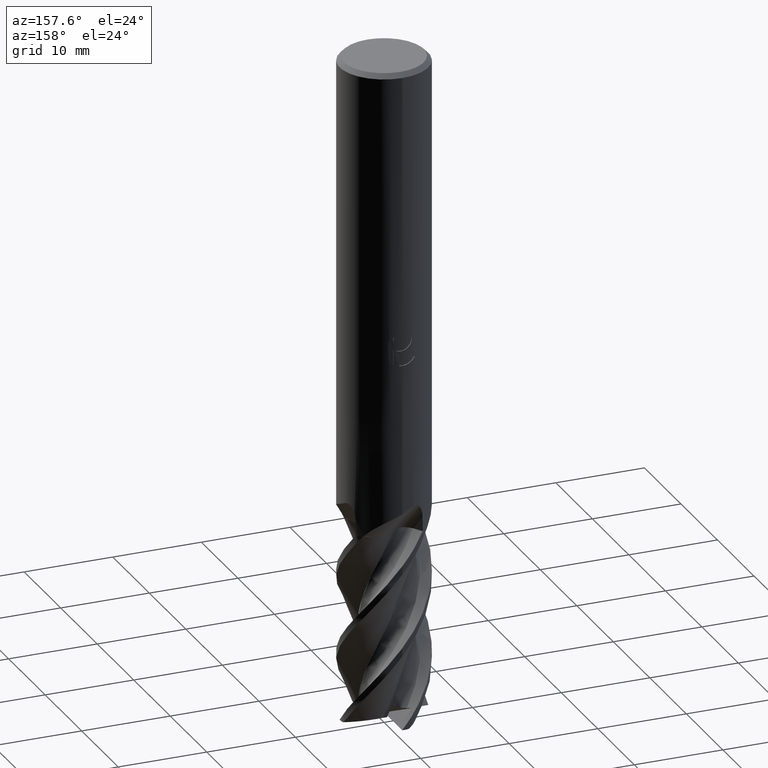
[diagram: clean part render]
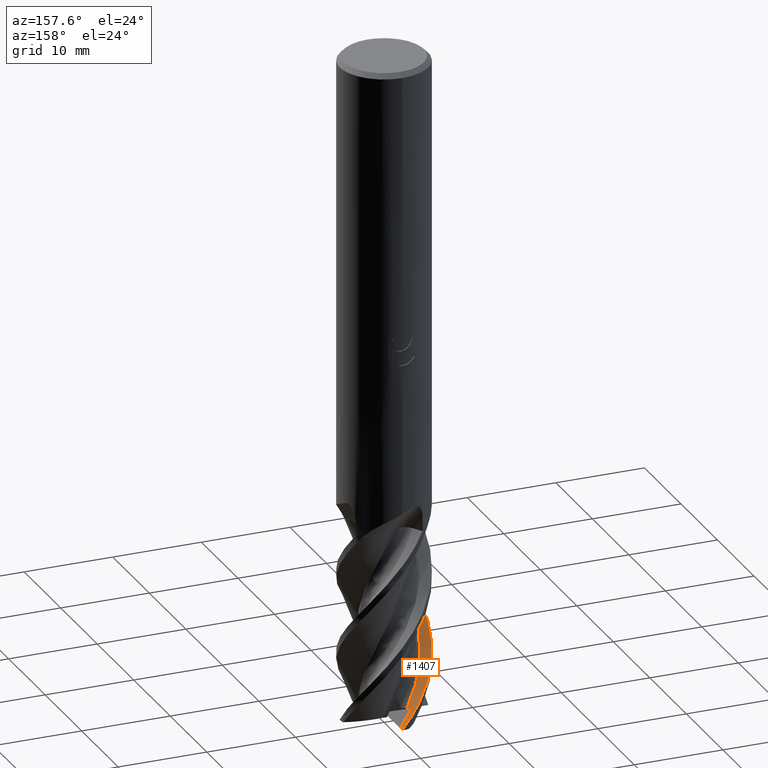
[diagram: same view with one face highlighted and labeled with its STEP entity id]
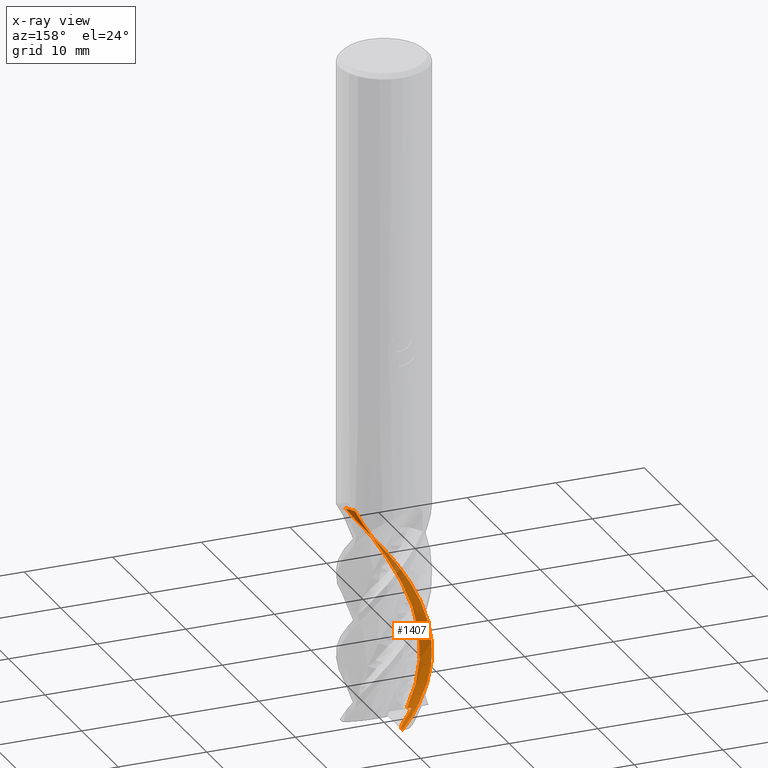
[diagram: x-ray of the same camera — body ghosted, the highlighted face saturated]
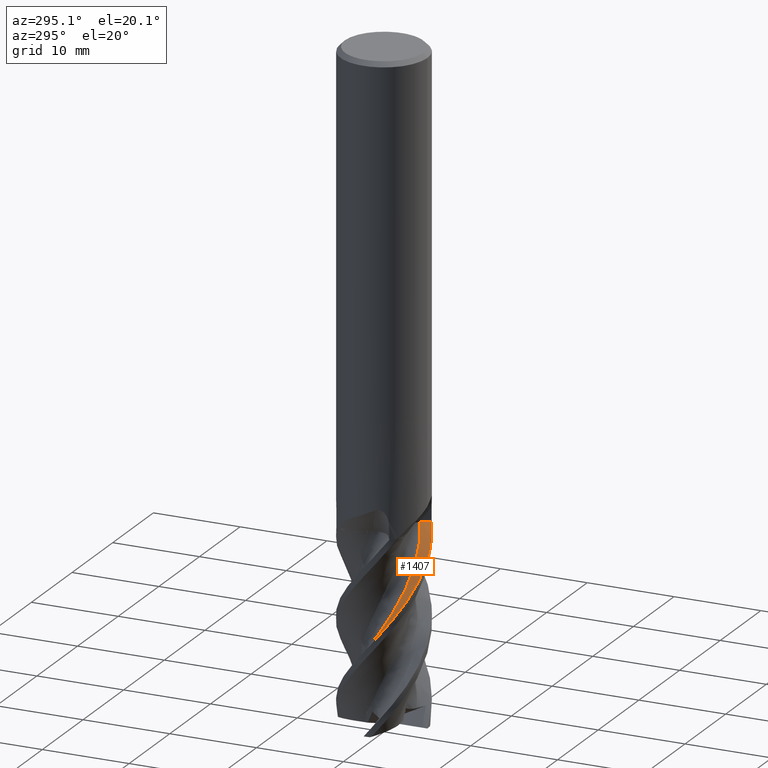
[diagram: same view with one face highlighted and labeled with its STEP entity id]
A machine part, auxiliary view. The second image highlights one B-rep face of the part: STEP entity #1407.
The next image is the same camera in x-ray: the body ghosted, the highlighted face saturated — about 12% of this face is hidden behind the body in this view.
A second angle (auxiliary view) of the same face is appended — the face is thin or edge-on in the first view.
In plain terms, the highlighted face is a freeform B-spline surface patch.
Its self-contained STEP definition (entity closure, byte-faithful):
#661=EDGE_CURVE('',#1363,#1141,#1661,.T.);
#667=EDGE_CURVE('',#1057,#911,#1667,.T.);
#701=EDGE_CURVE('',#911,#743,#1702,.T.);
#743=VERTEX_POINT('',#1747);
#911=VERTEX_POINT('',#1935);
#957=EDGE_CURVE('',#1141,#1057,#1983,.T.);
#1057=VERTEX_POINT('',#2091);
#1137=EDGE_CURVE('',#1197,#1353,#2179,.T.);
#1141=VERTEX_POINT('',#2183);
#1189=EDGE_CURVE('',#743,#1197,#2235,.T.);
#1197=VERTEX_POINT('',#2243);
#1285=EDGE_CURVE('',#1353,#1363,#2342,.T.);
#1353=VERTEX_POINT('',#2414);
#1363=VERTEX_POINT('',#2424);
#1407=ADVANCED_FACE('',(#2475),#2476,.T.);
#1661=B_SPLINE_CURVE_WITH_KNOTS('',3,(#3232,#3233,#3234,#3235,#3236,#3237,#3238,#3239,#3240,#3241,#3242,#3243,#3244,#3245,#3246,#3247,#3248,#3249,#3250,#3251,#3252,#3253,#3254,#3255,#3256,#3257,#3258,#3259,#3260,#3261,#3262,#3263,#3264,#3265,#3266,#3267,#3268,#3269,#3270,#3271,#3272,#3273),.UNSPECIFIED.,.F.,.F.,(4,2,2,2,2,2,2,2,2,2,2,2,2,2,2,2,2,2,2,2,4),(0.0,1.53652760794536,3.87250549074698,5.42159888540906,6.57529160098729,7.14777893956798,8.50902990223595,10.1655612727631,11.2944665209618,13.5017229439142,14.6148289873105,16.8178197053259,17.9196246500533,20.1106283841333,21.1957014363844,21.9712993966682,23.3290429210181,24.3653283489261,25.8635021609493,26.616826521443,27.3681466649819),.UNSPECIFIED.);
#1667=B_SPLINE_CURVE_WITH_KNOTS('',3,(#3282,#3283,#3284,#3285,#3286,#3287,#3288,#3289,#3290,#3291,#3292,#3293,#3294,#3295,#3296,#3297,#3298,#3299,#3300,#3301,#3302,#3303,#3304,#3305,#3306,#3307,#3308,#3309,#3310,#3311,#3312,#3313,#3314,#3315,#3316,#3317,#3318,#3319,#3320,#3321,#3322,#3323),.UNSPECIFIED.,.F.,.F.,(4,2,2,2,2,2,2,2,2,2,2,2,2,2,2,2,2,2,2,2,4),(0.0,1.53652760794536,3.87250549074698,5.42159888540906,6.57529160098729,7.14777893956798,8.50902990223595,10.1655612727631,11.2944665209618,13.5017229439142,14.6148289873105,16.8178197053259,17.9196246500533,20.1106283841333,21.1957014363844,21.9712993966682,23.3290429210181,24.3653283489261,25.8635021609493,26.616826521443,27.3681466649819),.UNSPECIFIED.);
#1702=B_SPLINE_CURVE_WITH_KNOTS('',3,(#3810,#3811,#3812,#3813,#3814,#3815,#3816,#3817,#3818,#3819,#3820,#3821,#3822,#3823,#3824,#3825,#3826,#3827,#3828,#3829,#3830,#3831,#3832,#3833,#3834,#3835,#3836,#3837),.UNSPECIFIED.,.F.,.F.,(4,2,2,2,2,2,2,2,2,2,2,2,2,4),(0.0,0.81890996863176,1.13930411827766,1.55244599896037,2.41847454357403,3.02823267671437,3.46285459909476,3.91399485452836,4.59992374035384,5.5716188959974,9.55246612589732,16.2999457968263,16.7000758043681,21.8881891010122),.UNSPECIFIED.);
#1747=CARTESIAN_POINT('',(-1.41002267526632,4.17503026798834,-73.0449553888539));
#1935=CARTESIAN_POINT('',(0.00029284233740714,4.99999993474591,-74.9875307460198));
#1983=B_SPLINE_CURVE_WITH_KNOTS('',3,(#5569,#5570,#5571,#5572,#5573,#5574,#5575,#5576,#5577,#5578,#5579,#5580,#5581,#5582,#5583,#5584,#5585,#5586,#5587,#5588,#5589,#5590,#5591,#5592,#5593,#5594,#5595,#5596,#5597,#5598,#5599,#5600,#5601,#5602,#5603,#5604,#5605,#5606,#5607,#5608,#5609,#5610),.UNSPECIFIED.,.F.,.F.,(4,2,2,2,2,2,2,2,2,2,2,2,2,2,2,2,2,2,2,2,4),(0.0,1.53652760794536,3.87250549074698,5.42159888540906,6.57529160098729,7.14777893956798,8.50902990223595,10.1655612727631,11.2944665209618,13.5017229439142,14.6148289873105,16.8178197053259,17.9196246500533,20.1106283841333,21.1957014363844,21.9712993966682,23.3290429210181,24.3653283489261,25.8635021609493,26.616826521443,27.3681466649819),.UNSPECIFIED.);
#2091=CARTESIAN_POINT('',(1.33110480624376E-014,4.99999994173844,-74.9871824572319));
#2179=B_SPLINE_CURVE_WITH_KNOTS('',3,(#7111,#7112,#7113,#7114,#7115,#7116,#7117,#7118,#7119,#7120,#7121,#7122,#7123,#7124,#7125,#7126,#7127,#7128,#7129,#7130,#7131,#7132,#7133,#7134,#7135,#7136,#7137,#7138,#7139,#7140,#7141,#7142,#7143,#7144,#7145,#7146,#7147,#7148,#7149,#7150,#7151,#7152,#7153,#7154,#7155,#7156,#7157,#7158,#7159,#7160,#7161,#7162,#7163),.UNSPECIFIED.,.F.,.F.,(4,1,2,1,2,1,2,1,2,1,2,1,2,1,2,1,2,1,2,1,2,1,2,1,2,1,2,1,2,1,2,1,2,1,4),(0.0,0.658549239123413,1.31709847824683,1.97564771737024,2.63419695649365,3.95129543474048,5.2683939129873,6.58549239123413,7.90259086948096,9.21968934772778,10.5367878259746,11.8538863042214,13.1709847824683,14.4880832607151,15.8051817389619,17.1222802172087,18.4393786954556,19.7564771737024,21.0735756519492,22.390674130196,23.7077726084429,25.0248710866897,26.3419695649365,27.6590680431833,28.9761665214302,30.293264999677,31.6103634779238,32.9274619561707,34.2445604344175,35.5616589126643,36.8787573909111,38.195855869158,39.5129543474048,40.8300528256516,42.1471513038984),.UNSPECIFIED.);
#2183=CARTESIAN_POINT('',(7.65345481890325E-010,-4.99991486074942,-56.269364871849));
#2235=B_SPLINE_CURVE_WITH_KNOTS('',3,(#7308,#7309,#7310,#7311,#7312,#7313),.UNSPECIFIED.,.F.,.F.,(4,2,4),(0.0,0.752535492506018,1.51115268146122),.UNSPECIFIED.);
#2243=CARTESIAN_POINT('',(-1.09334985087204,3.60114669389617,-73.2244277868559));
#2342=B_SPLINE_CURVE_WITH_KNOTS('',3,(#7700,#7701,#7702,#7703,#7704,#7705),.UNSPECIFIED.,.F.,.F.,(4,2,4),(0.0,0.718749972684842,1.43749994537414),.UNSPECIFIED.);
#2414=CARTESIAN_POINT('',(1.96059927409612,-3.21236791552506,-53.0));
#2424=CARTESIAN_POINT('',(2.61261439095677,-4.2630090375421,-53.0));
#2475=FACE_OUTER_BOUND('',#8945,.T.);
#2476=B_SPLINE_SURFACE_WITH_KNOTS('',3,3,((#8946,#8947,#8948,#8949,#8950,#8951,#8952,#8953,#8954,#8955,#8956,#8957,#8958,#8959,#8960,#8961,#8962,#8963,#8964,#8965,#8966,#8967,#8968,#8969,#8970,#8971,#8972,#8973,#8974,#8975,#8976,#8977,#8978,#8979,#8980,#8981,#8982,#8983,#8984,#8985,#8986,#8987,#8988,#8989,#8990,#8991,#8992,#8993,#8994,#8995,#8996,#8997,#8998),(#8999,#9000,#9001,#9002,#9003,#9004,#9005,#9006,#9007,#9008,#9009,#9010,#9011,#9012,#9013,#9014,#9015,#9016,#9017,#9018,#9019,#9020,#9021,#9022,#9023,#9024,#9025,#9026,#9027,#9028,#9029,#9030,#9031,#9032,#9033,#9034,#9035,#9036,#9037,#9038,#9039,#9040,#9041,#9042,#9043,#9044,#9045,#9046,#9047,#9048,#9049,#9050,#9051),(#9052,#9053,#9054,#9055,#9056,#9057,#9058,#9059,#9060,#9061,#9062,#9063,#9064,#9065,#9066,#9067,#9068,#9069,#9070,#9071,#9072,#9073,#9074,#9075,#9076,#9077,#9078,#9079,#9080,#9081,#9082,#9083,#9084,#9085,#9086,#9087,#9088,#9089,#9090,#9091,#9092,#9093,#9094,#9095,#9096,#9097,#9098,#9099,#9100,#9101,#9102,#9103,#9104),(#9105,#9106,#9107,#9108,#9109,#9110,#9111,#9112,#9113,#9114,#9115,#9116,#9117,#9118,#9119,#9120,#9121,#9122,#9123,#9124,#9125,#9126,#9127,#9128,#9129,#9130,#9131,#9132,#9133,#9134,#9135,#9136,#9137,#9138,#9139,#9140,#9141,#9142,#9143,#9144,#9145,#9146,#9147,#9148,#9149,#9150,#9151,#9152,#9153,#9154,#9155,#9156,#9157)),.UNSPECIFIED.,.F.,.F.,.F.,(4,4),(4,1,2,1,2,1,2,1,2,1,2,1,2,1,2,1,2,1,2,1,2,1,2,1,2,1,2,1,2,1,2,1,2,1,4),(0.0,1.4375),(0.0,0.658549239123413,1.31709847824683,1.97564771737024,2.63419695649365,3.95129543474048,5.2683939129873,6.58549239123413,7.90259086948096,9.21968934772778,10.5367878259746,11.8538863042214,13.1709847824683,14.4880832607151,15.8051817389619,17.1222802172087,18.4393786954556,19.7564771737024,21.0735756519492,22.390674130196,23.7077726084429,25.0248710866897,26.3419695649365,27.6590680431833,28.9761665214302,30.293264999677,31.6103634779238,32.9274619561707,34.2445604344175,35.5616589126643,36.8787573909111,38.195855869158,39.5129543474048,40.8300528256516,42.1471513038984),.UNSPECIFIED.);
#3232=CARTESIAN_POINT('',(2.61261439095677,-4.26300903754209,-53.0));
#3233=CARTESIAN_POINT('',(2.33168022880732,-4.43518356029351,-53.3921173948723));
#3234=CARTESIAN_POINT('',(2.03673548232764,-4.57814605552175,-53.7713202783011));
#3235=CARTESIAN_POINT('',(1.25704743735983,-4.86519257932207,-54.763881771331));
#3236=CARTESIAN_POINT('',(0.761107997679203,-4.96746317165334,-55.3731573320372));
#3237=CARTESIAN_POINT('',(-0.079064174761849,-5.01053118338478,-56.3637506473828));
#3238=CARTESIAN_POINT('',(-0.416516072528732,-4.99412891873343,-56.7611489300061));
#3239=CARTESIAN_POINT('',(-1.00306944843876,-4.90481342645093,-57.4740121028553));
#3240=CARTESIAN_POINT('',(-1.2506161446392,-4.84765467195389,-57.7795861466704));
#3241=CARTESIAN_POINT('',(-1.61349289822257,-4.73410818647994,-58.2338541864232));
#3242=CARTESIAN_POINT('',(-1.7328093887909,-4.69177502032966,-58.3842871308744));
#3243=CARTESIAN_POINT('',(-2.13140838939397,-4.53294598555673,-58.8905697308991));
#3244=CARTESIAN_POINT('',(-2.40122852307442,-4.39616987305223,-59.2443459519753));
#3245=CARTESIAN_POINT('',(-2.97350516805911,-4.03673112079447,-60.0545226221496));
#3246=CARTESIAN_POINT('',(-3.26563398856897,-3.80449507515539,-60.5034918817328));
#3247=CARTESIAN_POINT('',(-3.70995732714648,-3.36158337957804,-61.2486449363876));
#3248=CARTESIAN_POINT('',(-3.8747029263051,-3.17029720179318,-61.5413748515816));
#3249=CARTESIAN_POINT('',(-4.32060306161433,-2.5650010695875,-62.4353386164274));
#3250=CARTESIAN_POINT('',(-4.55444058546694,-2.12246155107382,-63.0382772831976));
#3251=CARTESIAN_POINT('',(-4.80213876847993,-1.41495926391821,-63.9271160797639));
#3252=CARTESIAN_POINT('',(-4.86669289105208,-1.17397441672789,-64.2165966255577));
#3253=CARTESIAN_POINT('',(-5.00570784405528,-0.43680557026315,-65.1096976761052));
#3254=CARTESIAN_POINT('',(-5.02449378371653,0.0648174665259144,-65.7143020133299));
#3255=CARTESIAN_POINT('',(-4.94019035025981,0.810378339797872,-66.6025656664188));
#3256=CARTESIAN_POINT('',(-4.89392733444926,1.05458849151022,-66.8913428531266));
#3257=CARTESIAN_POINT('',(-4.69925706040115,1.77931974599238,-67.7858757134359));
#3258=CARTESIAN_POINT('',(-4.49786932834333,2.24074293065297,-68.3921692829471));
#3259=CARTESIAN_POINT('',(-4.09767642345225,2.87586652925973,-69.2794364051379));
#3260=CARTESIAN_POINT('',(-3.95058104934403,3.07493759011856,-69.5676250937625));
#3261=CARTESIAN_POINT('',(-3.67051560766202,3.39986241291773,-70.079559711646));
#3262=CARTESIAN_POINT('',(-3.54686289144326,3.52862990734862,-70.2938391775754));
#3263=CARTESIAN_POINT('',(-3.18945390670018,3.86319536601544,-70.8826288824765));
#3264=CARTESIAN_POINT('',(-2.94129308894178,4.05560037428705,-71.258874518085));
#3265=CARTESIAN_POINT('',(-2.47194939685044,4.35283287807299,-71.9148742383612));
#3266=CARTESIAN_POINT('',(-2.26100944465999,4.46613654318639,-72.1937894465796));
#3267=CARTESIAN_POINT('',(-1.72016942056021,4.70781700908434,-72.900665823064));
#3268=CARTESIAN_POINT('',(-1.38667217305986,4.81655539388471,-73.323051260935));
#3269=CARTESIAN_POINT('',(-0.873049370661902,4.92631901576414,-73.951774151583));
#3270=CARTESIAN_POINT('',(-0.698505993641353,4.95414734187121,-74.1618357665089));
#3271=CARTESIAN_POINT('',(-0.345812525259719,4.9911673633412,-74.5790103207502));
#3272=CARTESIAN_POINT('',(-0.169019644695649,5.00037488609531,-74.7860924696578));
#3273=CARTESIAN_POINT('',(0.0107752814717108,4.99998838931744,-75.0));
#3282=CARTESIAN_POINT('',(2.61261439095677,-4.26300903754209,-53.0));
#3283=CARTESIAN_POINT('',(2.33168022880732,-4.43518356029351,-53.3921173948723));
#3284=CARTESIAN_POINT('',(2.03673548232764,-4.57814605552175,-53.7713202783011));
#3285=CARTESIAN_POINT('',(1.25704743735983,-4.86519257932207,-54.763881771331));
#3286=CARTESIAN_POINT('',(0.761107997679203,-4.96746317165334,-55.3731573320372));
#3287=CARTESIAN_POINT('',(-0.079064174761849,-5.01053118338478,-56.3637506473828));
#3288=CARTESIAN_POINT('',(-0.416516072528732,-4.99412891873343,-56.7611489300061));
#3289=CARTESIAN_POINT('',(-1.00306944843876,-4.90481342645093,-57.4740121028553));
#3290=CARTESIAN_POINT('',(-1.2506161446392,-4.84765467195389,-57.7795861466704));
#3291=CARTESIAN_POINT('',(-1.61349289822257,-4.73410818647994,-58.2338541864232));
#3292=CARTESIAN_POINT('',(-1.7328093887909,-4.69177502032966,-58.3842871308744));
#3293=CARTESIAN_POINT('',(-2.13140838939397,-4.53294598555673,-58.8905697308991));
#3294=CARTESIAN_POINT('',(-2.40122852307442,-4.39616987305223,-59.2443459519753));
#3295=CARTESIAN_POINT('',(-2.97350516805911,-4.03673112079447,-60.0545226221496));
#3296=CARTESIAN_POINT('',(-3.26563398856897,-3.80449507515539,-60.5034918817328));
#3297=CARTESIAN_POINT('',(-3.70995732714648,-3.36158337957804,-61.2486449363876));
#3298=CARTESIAN_POINT('',(-3.8747029263051,-3.17029720179318,-61.5413748515816));
#3299=CARTESIAN_POINT('',(-4.32060306161433,-2.5650010695875,-62.4353386164274));
#3300=CARTESIAN_POINT('',(-4.55444058546694,-2.12246155107382,-63.0382772831976));
#3301=CARTESIAN_POINT('',(-4.80213876847993,-1.41495926391821,-63.9271160797639));
#3302=CARTESIAN_POINT('',(-4.86669289105208,-1.17397441672789,-64.2165966255577));
#3303=CARTESIAN_POINT('',(-5.00570784405528,-0.43680557026315,-65.1096976761052));
#3304=CARTESIAN_POINT('',(-5.02449378371653,0.0648174665259144,-65.7143020133299));
#3305=CARTESIAN_POINT('',(-4.94019035025981,0.810378339797872,-66.6025656664188));
#3306=CARTESIAN_POINT('',(-4.89392733444926,1.05458849151022,-66.8913428531266));
#3307=CARTESIAN_POINT('',(-4.69925706040115,1.77931974599238,-67.7858757134359));
#3308=CARTESIAN_POINT('',(-4.49786932834333,2.24074293065297,-68.3921692829471));
#3309=CARTESIAN_POINT('',(-4.09767642345225,2.87586652925973,-69.2794364051379));
#3310=CARTESIAN_POINT('',(-3.95058104934403,3.07493759011856,-69.5676250937625));
#3311=CARTESIAN_POINT('',(-3.67051560766202,3.39986241291773,-70.079559711646));
#3312=CARTESIAN_POINT('',(-3.54686289144326,3.52862990734862,-70.2938391775754));
#3313=CARTESIAN_POINT('',(-3.18945390670018,3.86319536601544,-70.8826288824765));
#3314=CARTESIAN_POINT('',(-2.94129308894178,4.05560037428705,-71.258874518085));
#3315=CARTESIAN_POINT('',(-2.47194939685044,4.35283287807299,-71.9148742383612));
#3316=CARTESIAN_POINT('',(-2.26100944465999,4.46613654318639,-72.1937894465796));
#3317=CARTESIAN_POINT('',(-1.72016942056021,4.70781700908434,-72.900665823064));
#3318=CARTESIAN_POINT('',(-1.38667217305986,4.81655539388471,-73.323051260935));
#3319=CARTESIAN_POINT('',(-0.873049370661902,4.92631901576414,-73.951774151583));
#3320=CARTESIAN_POINT('',(-0.698505993641353,4.95414734187121,-74.1618357665089));
#3321=CARTESIAN_POINT('',(-0.345812525259719,4.9911673633412,-74.5790103207502));
#3322=CARTESIAN_POINT('',(-0.169019644695649,5.00037488609531,-74.7860924696578));
#3323=CARTESIAN_POINT('',(0.0107752814717108,4.99998838931744,-75.0));
#3810=CARTESIAN_POINT('',(0.00509907215994181,5.11290642858244,-74.9938674179883));
#3811=CARTESIAN_POINT('',(-0.00493925753269108,4.84043775987648,-74.9807269574867));
#3812=CARTESIAN_POINT('',(-0.0202261539185538,4.689092984475,-74.9600373445858));
#3813=CARTESIAN_POINT('',(-0.0581561877736606,4.55298204324454,-74.9080856431165));
#3814=CARTESIAN_POINT('',(-0.0710244158312656,4.52152496303667,-74.8904224939134));
#3815=CARTESIAN_POINT('',(-0.1075964970925,4.46040128145736,-74.8401502249125));
#3816=CARTESIAN_POINT('',(-0.133655039341457,4.43342971965412,-74.8042872602213));
#3817=CARTESIAN_POINT('',(-0.238971421193987,4.36212152309831,-74.659248952163));
#3818=CARTESIAN_POINT('',(-0.341823039038636,4.33340506400567,-74.5174996766975));
#3819=CARTESIAN_POINT('',(-0.405866605993137,4.31618664286524,-74.429233639712));
#3820=CARTESIAN_POINT('',(-0.43319505256365,4.31037420881357,-74.3915651136713));
#3821=CARTESIAN_POINT('',(-0.478624711230225,4.30202765440562,-74.3289431547051));
#3822=CARTESIAN_POINT('',(-0.497789053619081,4.29890954971558,-74.3025252634436));
#3823=CARTESIAN_POINT('',(-0.536337854809971,4.29314790683696,-74.2493847381914));
#3824=CARTESIAN_POINT('',(-0.556241183460773,4.29044710223385,-74.2219467763884));
#3825=CARTESIAN_POINT('',(-0.605687191965467,4.28414628520805,-74.1537813621753));
#3826=CARTESIAN_POINT('',(-0.636649281282544,4.28058640427863,-74.1110965673687));
#3827=CARTESIAN_POINT('',(-0.707964828696398,4.27271054372568,-74.0127790643461));
#3828=CARTESIAN_POINT('',(-0.749235641805772,4.26841738856138,-73.955881346609));
#3829=CARTESIAN_POINT('',(-0.986779396291846,4.24312560309066,-73.628394808712));
#3830=CARTESIAN_POINT('',(-1.12079171958009,4.22721028755806,-73.4436447412309));
#3831=CARTESIAN_POINT('',(-1.61288774364676,4.14038468721591,-72.7653117490062));
#3832=CARTESIAN_POINT('',(-1.90814633106217,4.05991763794256,-72.3583836581027));
#3833=CARTESIAN_POINT('',(-2.22528538630458,3.93670795360836,-71.9213943989421));
#3834=CARTESIAN_POINT('',(-2.24302287726514,3.92968728263508,-71.8969540561609));
#3835=CARTESIAN_POINT('',(-2.49054567972224,3.83019438524051,-71.5558983400335));
#3836=CARTESIAN_POINT('',(-2.66912895055308,3.75628933115842,-71.3098382115562));
#3837=CARTESIAN_POINT('',(-2.87588199104899,3.66075174243121,-71.0249901781374));
#5569=CARTESIAN_POINT('',(2.61261439095677,-4.26300903754209,-53.0));
#5570=CARTESIAN_POINT('',(2.33168022880732,-4.43518356029351,-53.3921173948723));
#5571=CARTESIAN_POINT('',(2.03673548232764,-4.57814605552175,-53.7713202783011));
#5572=CARTESIAN_POINT('',(1.25704743735983,-4.86519257932207,-54.763881771331));
#5573=CARTESIAN_POINT('',(0.761107997679203,-4.96746317165334,-55.3731573320372));
#5574=CARTESIAN_POINT('',(-0.079064174761849,-5.01053118338478,-56.3637506473828));
#5575=CARTESIAN_POINT('',(-0.416516072528732,-4.99412891873343,-56.7611489300061));
#5576=CARTESIAN_POINT('',(-1.00306944843876,-4.90481342645093,-57.4740121028553));
#5577=CARTESIAN_POINT('',(-1.2506161446392,-4.84765467195389,-57.7795861466704));
#5578=CARTESIAN_POINT('',(-1.61349289822257,-4.73410818647994,-58.2338541864232));
#5579=CARTESIAN_POINT('',(-1.7328093887909,-4.69177502032966,-58.3842871308744));
#5580=CARTESIAN_POINT('',(-2.13140838939397,-4.53294598555673,-58.8905697308991));
#5581=CARTESIAN_POINT('',(-2.40122852307442,-4.39616987305223,-59.2443459519753));
#5582=CARTESIAN_POINT('',(-2.97350516805911,-4.03673112079447,-60.0545226221496));
#5583=CARTESIAN_POINT('',(-3.26563398856897,-3.80449507515539,-60.5034918817328));
#5584=CARTESIAN_POINT('',(-3.70995732714648,-3.36158337957804,-61.2486449363876));
#5585=CARTESIAN_POINT('',(-3.8747029263051,-3.17029720179318,-61.5413748515816));
#5586=CARTESIAN_POINT('',(-4.32060306161433,-2.5650010695875,-62.4353386164274));
#5587=CARTESIAN_POINT('',(-4.55444058546694,-2.12246155107382,-63.0382772831976));
#5588=CARTESIAN_POINT('',(-4.80213876847993,-1.41495926391821,-63.9271160797639));
#5589=CARTESIAN_POINT('',(-4.86669289105208,-1.17397441672789,-64.2165966255577));
#5590=CARTESIAN_POINT('',(-5.00570784405528,-0.43680557026315,-65.1096976761052));
#5591=CARTESIAN_POINT('',(-5.02449378371653,0.0648174665259144,-65.7143020133299));
#5592=CARTESIAN_POINT('',(-4.94019035025981,0.810378339797872,-66.6025656664188));
#5593=CARTESIAN_POINT('',(-4.89392733444926,1.05458849151022,-66.8913428531266));
#5594=CARTESIAN_POINT('',(-4.69925706040115,1.77931974599238,-67.7858757134359));
#5595=CARTESIAN_POINT('',(-4.49786932834333,2.24074293065297,-68.3921692829471));
#5596=CARTESIAN_POINT('',(-4.09767642345225,2.87586652925973,-69.2794364051379));
#5597=CARTESIAN_POINT('',(-3.95058104934403,3.07493759011856,-69.5676250937625));
#5598=CARTESIAN_POINT('',(-3.67051560766202,3.39986241291773,-70.079559711646));
#5599=CARTESIAN_POINT('',(-3.54686289144326,3.52862990734862,-70.2938391775754));
#5600=CARTESIAN_POINT('',(-3.18945390670018,3.86319536601544,-70.8826288824765));
#5601=CARTESIAN_POINT('',(-2.94129308894178,4.05560037428705,-71.258874518085));
#5602=CARTESIAN_POINT('',(-2.47194939685044,4.35283287807299,-71.9148742383612));
#5603=CARTESIAN_POINT('',(-2.26100944465999,4.46613654318639,-72.1937894465796));
#5604=CARTESIAN_POINT('',(-1.72016942056021,4.70781700908434,-72.900665823064));
#5605=CARTESIAN_POINT('',(-1.38667217305986,4.81655539388471,-73.323051260935));
#5606=CARTESIAN_POINT('',(-0.873049370661902,4.92631901576414,-73.951774151583));
#5607=CARTESIAN_POINT('',(-0.698505993641353,4.95414734187121,-74.1618357665089));
#5608=CARTESIAN_POINT('',(-0.345812525259719,4.9911673633412,-74.5790103207502));
#5609=CARTESIAN_POINT('',(-0.169019644695649,5.00037488609531,-74.7860924696578));
#5610=CARTESIAN_POINT('',(0.0107752814717108,4.99998838931744,-75.0));
#7111=CARTESIAN_POINT('',(3.75846504508571,-0.174203199938611,-85.0));
#7112=CARTESIAN_POINT('',(3.75922417421371,-0.180367674164919,-84.781257534348));
#7113=CARTESIAN_POINT('',(3.76659625728198,-0.101343983706272,-84.3437017067897));
#7114=CARTESIAN_POINT('',(3.76514038195834,0.166872443505842,-83.9061227876956));
#7115=CARTESIAN_POINT('',(3.73059290488503,0.525748748329141,-83.4686790293266));
#7116=CARTESIAN_POINT('',(3.67418562141778,0.853419521872618,-83.0312599785647));
#7117=CARTESIAN_POINT('',(3.59371181488687,1.12390867597707,-82.5937922235737));
#7118=CARTESIAN_POINT('',(3.46384525798217,1.49508836855377,-81.9374991454781));
#7119=CARTESIAN_POINT('',(3.2393925556906,1.97184736327811,-81.0624396209978));
#7120=CARTESIAN_POINT('',(2.90400512153349,2.4110401264588,-80.1874068062779));
#7121=CARTESIAN_POINT('',(2.50649264281788,2.82167058888249,-79.3124420205515));
#7122=CARTESIAN_POINT('',(2.07729339410272,3.17357801079059,-78.4374849235509));
#7123=CARTESIAN_POINT('',(1.58763876135109,3.42370937660027,-77.5624771201081));
#7124=CARTESIAN_POINT('',(1.06179339499986,3.62139719684409,-76.6874636115137));
#7125=CARTESIAN_POINT('',(0.528045233548039,3.7560348194121,-75.812465434064));
#7126=CARTESIAN_POINT('',(-0.0227563812656097,3.77389672882266,-74.9374521777107));
#7127=CARTESIAN_POINT('',(-0.583877475730668,3.72844242991629,-74.0624554440398));
#7128=CARTESIAN_POINT('',(-1.12416091114104,3.62250415173364,-73.1874694992744));
#7129=CARTESIAN_POINT('',(-1.62960945578931,3.40400478492427,-72.3124569222851));
#7130=CARTESIAN_POINT('',(-2.11788147370052,3.12358907741629,-71.4374554871606));
#7131=CARTESIAN_POINT('',(-2.56162684890057,2.79723400787934,-70.5624665057969));
#7132=CARTESIAN_POINT('',(-2.92567780536026,2.38395213524524,-69.6874539774211));
#7133=CARTESIAN_POINT('',(-3.24765439708875,1.92222254608529,-68.8124536161588));
#7134=CARTESIAN_POINT('',(-3.50980338627726,1.43794004710195,-67.9374652209048));
#7135=CARTESIAN_POINT('',(-3.66288554470886,0.90890869378754,-67.0624526373256));
#7136=CARTESIAN_POINT('',(-3.7572548754488,0.353901504744772,-66.1874521349676));
#7137=CARTESIAN_POINT('',(-3.78787536081154,-0.195986430718188,-65.3124636789923));
#7138=CARTESIAN_POINT('',(-3.70074520138514,-0.739810773391773,-64.4374510979044));
#7139=CARTESIAN_POINT('',(-3.54943330720816,-1.28207916639166,-63.5624505838795));
#7140=CARTESIAN_POINT('',(-3.34264164739798,-1.79252633141488,-62.6874621329671));
#7141=CARTESIAN_POINT('',(-3.03193515623659,-2.24726530458449,-61.812449551569));
#7142=CARTESIAN_POINT('',(-2.66384433912378,-2.67322628111993,-60.9374490151771));
#7143=CARTESIAN_POINT('',(-2.25913979009173,-3.04675106378391,-60.0624605524643));
#7144=CARTESIAN_POINT('',(-1.78419724096644,-3.32557940563273,-59.1874479820501));
#7145=CARTESIAN_POINT('',(-1.26962301412973,-3.55390890138633,-58.3124474617861));
#7146=CARTESIAN_POINT('',(-0.74429401736151,-3.71919688362253,-57.4374589866491));
#7147=CARTESIAN_POINT('',(-0.195814907648407,-3.76888495198699,-56.5624463791087));
#7148=CARTESIAN_POINT('',(0.366981426245853,-3.75599902673512,-55.6874458281175));
#7149=CARTESIAN_POINT('',(0.912657474235505,-3.68150497461483,-54.8124574190809));
#7150=CARTESIAN_POINT('',(1.43001184003837,-3.49254974213338,-53.937445075685));
#7151=CARTESIAN_POINT('',(1.93362453138251,-3.2408801103062,-53.0624448592306));
#7152=CARTESIAN_POINT('',(2.39540700196463,-2.94081705337123,-52.1874561530978));
#7153=CARTESIAN_POINT('',(2.78278411132209,-2.54930803179663,-51.3124425858343));
#7154=CARTESIAN_POINT('',(3.1310410631116,-2.10684892968575,-50.4374410272394));
#7155=CARTESIAN_POINT('',(3.42082265904292,-1.63839330809177,-49.5624537630129));
#7156=CARTESIAN_POINT('',(3.60409016617578,-1.11945713400965,-48.6874443570381));
#7157=CARTESIAN_POINT('',(3.73030487991702,-0.571684806512779,-47.8124462662842));
#7158=CARTESIAN_POINT('',(3.79294591409017,-0.0247414562725736,-46.9374525722856));
#7159=CARTESIAN_POINT('',(3.73729567898617,0.525697689422164,-46.0624311257452));
#7160=CARTESIAN_POINT('',(3.61626740837627,1.07977270741542,-45.1874270825808));
#7161=CARTESIAN_POINT('',(3.43806007058996,1.60075189261619,-44.3124557440473));
#7162=CARTESIAN_POINT('',(3.15984968329935,2.0627164329609,-43.4374654493909));
#7163=CARTESIAN_POINT('',(2.99429631365515,2.27997981087198,-42.9999677084395));
#7308=CARTESIAN_POINT('',(-1.82647113006645,4.86968545126578,-72.8517862736508));
#7309=CARTESIAN_POINT('',(-1.69693642429806,4.6618297903047,-72.906008783688));
#7310=CARTESIAN_POINT('',(-1.57051816492405,4.45224783279707,-72.9637274860498));
#7311=CARTESIAN_POINT('',(-1.32564573642866,4.02972978232443,-73.087344800285));
#7312=CARTESIAN_POINT('',(-1.20671533062211,3.81583400109973,-73.1535822818938));
#7313=CARTESIAN_POINT('',(-1.09334985093284,3.60114669387691,-73.2244277869138));
#7700=CARTESIAN_POINT('',(1.9605992741811,-3.21236791547232,-53.0));
#7701=CARTESIAN_POINT('',(2.08693199821652,-3.41593660679312,-53.0));
#7702=CARTESIAN_POINT('',(2.21326452617913,-3.61950541979491,-53.0));
#7703=CARTESIAN_POINT('',(2.46592918995727,-4.02664328916153,-53.0));
#7704=CARTESIAN_POINT('',(2.59226132577292,-4.23021234552656,-53.0));
#7705=CARTESIAN_POINT('',(2.71859326551368,-4.43378152357256,-53.0));
#8945=EDGE_LOOP('',(#11638,#11639,#11640,#11641,#11642,#11643,#11644));
#8946=CARTESIAN_POINT('',(3.75846504509034,-0.174203199838719,-85.0));
#8947=CARTESIAN_POINT('',(3.75922417421834,-0.180367674065087,-84.781257534348));
#8948=CARTESIAN_POINT('',(3.76659625728186,-0.101343983606239,-84.3437017067897));
#8949=CARTESIAN_POINT('',(3.76514038195602,0.166872443605937,-83.9061227876956));
#8950=CARTESIAN_POINT('',(3.73059290486704,0.525748748428011,-83.4686790293266));
#8951=CARTESIAN_POINT('',(3.67418562139574,0.853419521970375,-83.0312599785651));
#8952=CARTESIAN_POINT('',(3.59371181485703,1.12390867607199,-82.5937922235727));
#8953=CARTESIAN_POINT('',(3.46384525794051,1.4950883686463,-81.9374991454801));
#8954=CARTESIAN_POINT('',(3.23939255563683,1.97184736336328,-81.0624396209969));
#8955=CARTESIAN_POINT('',(2.90400512147148,2.41104012653563,-80.1874068062779));
#8956=CARTESIAN_POINT('',(2.50649264273974,2.82167058894835,-79.3124420205515));
#8957=CARTESIAN_POINT('',(2.07729339401847,3.17357801084494,-78.4374849235529));
#8958=CARTESIAN_POINT('',(1.58763876126148,3.42370937664237,-77.5624771201042));
#8959=CARTESIAN_POINT('',(1.06179339490174,3.62139719687097,-76.6874636115176));
#8960=CARTESIAN_POINT('',(0.528045233448862,3.75603481942354,-75.812465434062));
#8961=CARTESIAN_POINT('',(-0.0227563813656528,3.77389672882558,-74.9374521777107));
#8962=CARTESIAN_POINT('',(-0.583877475829847,3.72844242989575,-74.0624554440398));
#8963=CARTESIAN_POINT('',(-1.12416091123712,3.62250415170346,-73.1874694992783));
#8964=CARTESIAN_POINT('',(-1.6296094558791,3.40400478488375,-72.3124569222773));
#8965=CARTESIAN_POINT('',(-2.11788147378342,3.12358907735593,-71.4374554871685));
#8966=CARTESIAN_POINT('',(-2.56162684897544,2.79723400781252,-70.5624665057969));
#8967=CARTESIAN_POINT('',(-2.92567780542057,2.38395213516687,-69.6874539774133));
#8968=CARTESIAN_POINT('',(-3.24765439714162,1.92222254599877,-68.8124536161666));
#8969=CARTESIAN_POINT('',(-3.50980338631336,1.43794004700814,-67.9374652209009));
#8970=CARTESIAN_POINT('',(-3.66288554473263,0.908908693690412,-67.0624526373256));
#8971=CARTESIAN_POINT('',(-3.7572548754571,0.353901504644488,-66.1874521349676));
#8972=CARTESIAN_POINT('',(-3.78787536080733,-0.195986430818265,-65.3124636790001));
#8973=CARTESIAN_POINT('',(-3.70074520136158,-0.739810773490633,-64.4374510978889));
#8974=CARTESIAN_POINT('',(-3.54943330717654,-1.28207916648504,-63.5624505838951));
#8975=CARTESIAN_POINT('',(-3.34264164734698,-1.79252633150535,-62.6874621329593));
#8976=CARTESIAN_POINT('',(-3.03193515617853,-2.24726530466125,-61.812449551569));
#8977=CARTESIAN_POINT('',(-2.66384433904996,-2.67322628119352,-60.9374490151771));
#8978=CARTESIAN_POINT('',(-2.25913979001121,-3.04675106383931,-60.0624605524643));
#8979=CARTESIAN_POINT('',(-1.7841972408782,-3.32557940568417,-59.1874479820501));
#8980=CARTESIAN_POINT('',(-1.26962301403457,-3.55390890141466,-58.3124474617861));
#8981=CARTESIAN_POINT('',(-0.744294017262821,-3.71919688364569,-57.4374589866491));
#8982=CARTESIAN_POINT('',(-0.195814907548146,-3.76888495198788,-56.5624463791087));
#8983=CARTESIAN_POINT('',(0.3669814263455,-3.75599902672818,-55.6874458281175));
#8984=CARTESIAN_POINT('',(0.912657474333064,-3.68150497458839,-54.8124574190731));
#8985=CARTESIAN_POINT('',(1.43001184013111,-3.49254974209404,-53.9374450757006));
#8986=CARTESIAN_POINT('',(1.93362453146801,-3.24088011025482,-53.062444859215));
#8987=CARTESIAN_POINT('',(2.39540700204253,-2.94081705330688,-52.1874561530901));
#8988=CARTESIAN_POINT('',(2.78278411138902,-2.54930803172176,-51.3124425858655));
#8989=CARTESIAN_POINT('',(3.13104106316721,-2.10684892960255,-50.4374410272082));
#8990=CARTESIAN_POINT('',(3.42082265908543,-1.63839330800024,-49.5624537630285));
#8991=CARTESIAN_POINT('',(3.60409016620524,-1.11945713391387,-48.6874443570381));
#8992=CARTESIAN_POINT('',(3.73030487993103,-0.571684806413347,-47.8124462662842));
#8993=CARTESIAN_POINT('',(3.79294591409001,-0.0247414561718519,-46.93745257227));
#8994=CARTESIAN_POINT('',(3.737295678972,0.525697689521288,-46.0624311257765));
#8995=CARTESIAN_POINT('',(3.61626740834633,1.07977270751138,-45.1874270825496));
#8996=CARTESIAN_POINT('',(3.43806007054787,1.60075189270756,-44.312455744063));
#8997=CARTESIAN_POINT('',(3.15984968324221,2.06271643304369,-43.4374654493909));
#8998=CARTESIAN_POINT('',(2.99429631359394,2.27997981095106,-42.9999677084396));
#8999=CARTESIAN_POINT('',(4.23711784707065,-0.196388546440761,-85.0));
#9000=CARTESIAN_POINT('',(4.23794062249673,-0.201179436900482,-84.7812578435563));
#9001=CARTESIAN_POINT('',(4.2460803331588,-0.109138485951662,-84.3436956172635));
#9002=CARTESIAN_POINT('',(4.24409664395781,0.193327536128675,-83.9061084096885));
#9003=CARTESIAN_POINT('',(4.20501621095374,0.596608487421842,-83.4686713030371));
#9004=CARTESIAN_POINT('',(4.14133336875902,0.965139550146091,-83.0312614327978));
#9005=CARTESIAN_POINT('',(4.05039477232848,1.2699353405888,-82.593797188511));
#9006=CARTESIAN_POINT('',(3.90350369126888,1.68855678255918,-81.9374991356436));
#9007=CARTESIAN_POINT('',(3.64979057359648,2.22617465845186,-81.0624329669593));
#9008=CARTESIAN_POINT('',(3.27124082255499,2.72096248702242,-80.1873966213073));
#9009=CARTESIAN_POINT('',(2.8229456855589,3.18329307355221,-79.3124359088237));
#9010=CARTESIAN_POINT('',(2.33876520563161,3.57961531433789,-78.4374836863296));
#9011=CARTESIAN_POINT('',(1.78643198263717,3.86115252371355,-77.5624750778767));
#9012=CARTESIAN_POINT('',(1.19357490180922,4.08346676609695,-76.6874600371529));
#9013=CARTESIAN_POINT('',(0.591661945200606,4.23475933658083,-75.8124621678272));
#9014=CARTESIAN_POINT('',(-0.0293539718017334,4.25435091386449,-74.9374474585254));
#9015=CARTESIAN_POINT('',(-0.661717076025443,4.20259451894905,-74.0624511732849));
#9016=CARTESIAN_POINT('',(-1.27076776870874,4.08264084143962,-73.1874668415858));
#9017=CARTESIAN_POINT('',(-1.8404244927543,3.83578859567452,-72.3124529454844));
#9018=CARTESIAN_POINT('',(-2.39046290166253,3.5192897894259,-71.4374513608987));
#9019=CARTESIAN_POINT('',(-2.89045843706128,3.15091750442883,-70.5624636868881));
#9020=CARTESIAN_POINT('',(-3.30049999199704,2.68459799854828,-69.6874498669029));
#9021=CARTESIAN_POINT('',(-3.66294730107358,2.16390584601138,-68.8124494309178));
#9022=CARTESIAN_POINT('',(-3.95805169971144,1.61764685365583,-67.937462467379));
#9023=CARTESIAN_POINT('',(-4.13011976055933,1.0210337795758,-67.0624485052054));
#9024=CARTESIAN_POINT('',(-4.23595604554261,0.395428699556982,-66.1874480028474));
#9025=CARTESIAN_POINT('',(-4.26995842287849,-0.224577754726014,-65.3124608663496));
#9026=CARTESIAN_POINT('',(-4.17118252300016,-0.837630242419503,-64.4374470411454));
#9027=CARTESIAN_POINT('',(-4.00013774215616,-1.44864699290281,-63.5624463776748));
#9028=CARTESIAN_POINT('',(-3.76650454704363,-2.02396048706889,-62.6874593962856));
#9029=CARTESIAN_POINT('',(-3.41574414228388,-2.53635097742908,-61.8124454193211));
#9030=CARTESIAN_POINT('',(-3.0004897367626,-3.01608068355262,-60.9374448829292));
#9031=CARTESIAN_POINT('',(-2.54384700627362,-3.43683211333534,-60.0624577728718));
#9032=CARTESIAN_POINT('',(-2.00809197730895,-3.75072755584757,-59.1874438486276));
#9033=CARTESIAN_POINT('',(-1.42793033979699,-4.0075806197935,-58.3124433283636));
#9034=CARTESIAN_POINT('',(-0.835485250934674,-4.19343877987961,-57.4374562107932));
#9035=CARTESIAN_POINT('',(-0.217048263522085,-4.24891507095894,-56.5624422380938));
#9036=CARTESIAN_POINT('',(0.417235052790672,-4.23386274405219,-55.6874416871025));
#9037=CARTESIAN_POINT('',(1.0323931120071,-4.14935657166442,-54.8124546158436));
#9038=CARTESIAN_POINT('',(1.61550042548027,-3.93580356847772,-53.9374409812958));
#9039=CARTESIAN_POINT('',(2.18285611535051,-3.65168784615569,-53.0624407648102));
#9040=CARTESIAN_POINT('',(2.70321437719236,-3.31294038170613,-52.1874534856649));
#9041=CARTESIAN_POINT('',(3.13957659328799,-2.87114554906663,-51.3124383108592));
#9042=CARTESIAN_POINT('',(3.53165951786123,-2.37214976973516,-50.4374367522019));
#9043=CARTESIAN_POINT('',(3.85793231182018,-1.84371186418283,-49.5624508019605));
#9044=CARTESIAN_POINT('',(4.06404546948231,-1.25844502955053,-48.6874403647514));
#9045=CARTESIAN_POINT('',(4.20578176555097,-0.640950116489493,-47.8124428719048));
#9046=CARTESIAN_POINT('',(4.2758874277425,-0.0242270735210282,-46.9374501805367));
#9047=CARTESIAN_POINT('',(4.21260100126799,0.596276659307184,-46.0624264540729));
#9048=CARTESIAN_POINT('',(4.07569431057026,1.22056650350317,-45.1874215139853));
#9049=CARTESIAN_POINT('',(3.87428815248698,1.80778168303909,-44.3124525798971));
#9050=CARTESIAN_POINT('',(3.56006622923984,2.32849820347486,-43.4374619688278));
#9051=CARTESIAN_POINT('',(3.3731948992297,2.57329969816187,-42.9999640783996));
#9052=CARTESIAN_POINT('',(4.71577064904156,-0.218573893042167,-85.0));
#9053=CARTESIAN_POINT('',(4.71665710542029,-0.221991200888955,-84.7812581528398));
#9054=CARTESIAN_POINT('',(4.72556437008339,-0.116932987910638,-84.3436895270494));
#9055=CARTESIAN_POINT('',(4.72305294918176,0.219782629035817,-83.9060940329823));
#9056=CARTESIAN_POINT('',(4.67943947383023,0.667468226029499,-83.4686635754493));
#9057=CARTESIAN_POINT('',(4.60848114161627,1.07685957801723,-83.0312628963867));
#9058=CARTESIAN_POINT('',(4.50707772205947,1.41596200609556,-82.5938021360351));
#9059=CARTESIAN_POINT('',(4.34316214009191,1.88202519449378,-81.9374991606195));
#9060=CARTESIAN_POINT('',(4.06018856313164,2.48050197044054,-81.0624262955416));
#9061=CARTESIAN_POINT('',(3.63847656498833,3.03088481570123,-80.1873864362814));
#9062=CARTESIAN_POINT('',(3.13939868704092,3.54491558996265,-79.3124297971499));
#9063=CARTESIAN_POINT('',(2.60023703835065,3.98565261755892,-78.4374824728006));
#9064=CARTESIAN_POINT('',(1.98522520314841,4.29859563953612,-77.5624729882229));
#9065=CARTESIAN_POINT('',(1.32535640958074,4.5455363665491,-76.6874565102081));
#9066=CARTESIAN_POINT('',(0.655278656858653,4.713483817499,-75.8124588822478));
#9067=CARTESIAN_POINT('',(-0.0359515629158189,4.73480514017841,-74.9374427305751));
#9068=CARTESIAN_POINT('',(-0.73955667554605,4.67674656672546,-74.0624469112759));
#9069=CARTESIAN_POINT('',(-1.41737461558806,4.54277754138188,-73.1874642134127));
#9070=CARTESIAN_POINT('',(-2.05123955147943,4.26757242732512,-72.3124489009334));
#9071=CARTESIAN_POINT('',(-2.663044307699,3.91499048063375,-71.4374473023827));
#9072=CARTESIAN_POINT('',(-3.21929005200539,3.50460100039336,-70.5624608661335));
#9073=CARTESIAN_POINT('',(-3.67532214672753,2.9852438840832,-69.6874456923335));
#9074=CARTESIAN_POINT('',(-4.07824023683639,2.40558912387084,-68.8124453097233));
#9075=CARTESIAN_POINT('',(-4.40629998335957,1.79735367144124,-67.9374596829612));
#9076=CARTESIAN_POINT('',(-4.59735400403595,1.13315886534592,-67.0624443707648));
#9077=CARTESIAN_POINT('',(-4.71465718796931,0.436955894582885,-66.1874438730549));
#9078=CARTESIAN_POINT('',(-4.7520415110836,-0.2531690750204,-65.3124581275866));
#9079=CARTESIAN_POINT('',(-4.64161981998213,-0.935449718694701,-64.4374428342929));
#9080=CARTESIAN_POINT('',(-4.45084220176414,-1.615214811977,-63.5624423215157));
#9081=CARTESIAN_POINT('',(-4.19036743825421,-2.25539466141075,-62.6874565827271));
#9082=CARTESIAN_POINT('',(-3.79955312071874,-2.82543661998534,-61.8124412907487));
#9083=CARTESIAN_POINT('',(-3.33713514214326,-3.35893511611539,-60.9374407470571));
#9084=CARTESIAN_POINT('',(-2.82855422186683,-3.82691310948881,-60.0624550329025));
#9085=CARTESIAN_POINT('',(-2.23198670739556,-4.17587578248988,-59.1874396396444));
#9086=CARTESIAN_POINT('',(-1.58623767190163,-4.46125226172859,-58.3124392704482));
#9087=CARTESIAN_POINT('',(-0.926676485861541,-4.66768072805053,-57.4374533917498));
#9088=CARTESIAN_POINT('',(-0.238281610642867,-4.72894516248995,-56.5624381078856));
#9089=CARTESIAN_POINT('',(0.467488670384231,-4.71172648881444,-55.6874375352761));
#9090=CARTESIAN_POINT('',(1.15212879513545,-4.61720813291981,-54.8124518527989));
#9091=CARTESIAN_POINT('',(1.80098892877361,-4.37905743907337,-53.9374368172926));
#9092=CARTESIAN_POINT('',(2.43208778126512,-4.06249553786015,-53.0624367399999));
#9093=CARTESIAN_POINT('',(3.01102170610632,-3.68506372565636,-52.1874507354319));
#9094=CARTESIAN_POINT('',(3.49636908561116,-3.19298307953199,-51.3124341321074));
#9095=CARTESIAN_POINT('',(3.93227796214917,-2.63745059675622,-50.4374323809552));
#9096=CARTESIAN_POINT('',(4.29504195661952,-2.0490304261184,-49.5624478608188));
#9097=CARTESIAN_POINT('',(4.52400079902544,-1.39743292679838,-48.6874364288002));
#9098=CARTESIAN_POINT('',(4.68125862491925,-0.710215424953805,-47.8124394212254));
#9099=CARTESIAN_POINT('',(4.75882894563135,-0.0237126869621082,-46.9374478389429));
#9100=CARTESIAN_POINT('',(4.68790634141072,0.666855619666438,-46.0624217381713));
#9101=CARTESIAN_POINT('',(4.53512119495504,1.36136030891957,-45.1874159896299));
#9102=CARTESIAN_POINT('',(4.31051626652866,2.01481147440483,-44.3124492866954));
#9103=CARTESIAN_POINT('',(3.96028272887087,2.59427996242444,-43.4374587021844));
#9104=CARTESIAN_POINT('',(3.75209348486643,2.86661958537718,-42.9999604483638));
#9105=CARTESIAN_POINT('',(5.19442345102187,-0.240759239644209,-85.0));
#9106=CARTESIAN_POINT('',(5.19537357236324,-0.242802964589444,-84.7812584619751));
#9107=CARTESIAN_POINT('',(5.20504841335141,-0.124727487575612,-84.3436834398954));
#9108=CARTESIAN_POINT('',(5.20200925773682,0.246237717062749,-83.9060796503041));
#9109=CARTESIAN_POINT('',(5.15386273336366,0.738327969519136,-83.468655853831));
#9110=CARTESIAN_POINT('',(5.07562891458925,1.1885796038369,-83.0312643482838));
#9111=CARTESIAN_POINT('',(4.96376067486477,1.56198867082865,-82.5938071009735));
#9112=CARTESIAN_POINT('',(4.78282058275257,2.0754936079741,-81.937499150783));
#9113=CARTESIAN_POINT('',(4.47058658022619,2.73482924686456,-81.062419641504));
#9114=CARTESIAN_POINT('',(4.00571225846975,3.3408072139497,-80.1873762513108));
#9115=CARTESIAN_POINT('',(3.45585173746216,3.90653803680484,-79.3124236854221));
#9116=CARTESIAN_POINT('',(2.86170884616274,4.3916899399327,-78.4374812542619));
#9117=CARTESIAN_POINT('',(2.1840184245241,4.7360387866073,-77.5624709086262));
#9118=CARTESIAN_POINT('',(1.45713791648821,5.00760593577507,-76.6874529732126));
#9119=CARTESIAN_POINT('',(0.71889536351171,5.19220832554029,-75.8124555786438));
#9120=CARTESIAN_POINT('',(-0.0425491431545239,5.21525934344934,-74.937438048759));
#9121=CARTESIAN_POINT('',(-0.817396285939021,5.15089863754674,-74.0624426031518));
#9122=CARTESIAN_POINT('',(-1.56398147815837,5.00291422200203,-73.1874615744047));
#9123=CARTESIAN_POINT('',(-2.26205456795988,4.69935627457992,-72.3124449241404));
#9124=CARTESIAN_POINT('',(-2.93562575597286,4.31069115623968,-71.437443176113));
#9125=CARTESIAN_POINT('',(-3.54812163477627,3.85828451079182,-70.5624580845939));
#9126=CARTESIAN_POINT('',(-4.05014432353917,3.28588975636434,-69.6874415070847));
#9127=CARTESIAN_POINT('',(-4.49353315053317,2.64727241498372,-68.8124411992129));
#9128=CARTESIAN_POINT('',(-4.85454826401357,1.97706047832482,-67.9374568920702));
#9129=CARTESIAN_POINT('',(-5.064588275586,1.24528395965927,-67.0624402386446));
#9130=CARTESIAN_POINT('',(-5.19335830233148,0.47848308106742,-66.1874397409347));
#9131=CARTESIAN_POINT('',(-5.23412460069201,-0.281760387714958,-65.3124553523053));
#9132=CARTESIAN_POINT('',(-5.11205714226952,-1.03326920162199,-64.4374387028111));
#9133=CARTESIAN_POINT('',(-4.90154663609494,-1.78178262439635,-63.5624381900339));
#9134=CARTESIAN_POINT('',(-4.61423033827528,-2.4868288239735,-62.6874538086842));
#9135=CARTESIAN_POINT('',(-4.18336210682409,-3.11452229275318,-61.8124371585008));
#9136=CARTESIAN_POINT('',(-3.6737805398559,-3.70178951847449,-60.9374366148092));
#9137=CARTESIAN_POINT('',(-3.11326143454446,-4.21699418253181,-60.0624522159408));
#9138=CARTESIAN_POINT('',(-2.45588145099586,-4.60102388555933,-59.1874355809603));
#9139=CARTESIAN_POINT('',(-1.74454499049451,-4.91492402720139,-58.3124350622873));
#9140=CARTESIAN_POINT('',(-1.01786772938339,-5.14192260979942,-57.4374506532631));
#9141=CARTESIAN_POINT('',(-0.25951495408636,-5.20897526333713,-56.5624339668706));
#9142=CARTESIAN_POINT('',(0.517742284298957,-5.18959022426233,-55.6874333942611));
#9143=CARTESIAN_POINT('',(1.27186443864215,-5.08505973026619,-54.8124490495694));
#9144=CARTESIAN_POINT('',(1.98647751498786,-4.82231124679249,-53.9374327228878));
#9145=CARTESIAN_POINT('',(2.68131936428253,-4.47330329242558,-53.0624326455951));
#9146=CARTESIAN_POINT('',(3.31882908613857,-4.05718704960574,-52.1874479932683));
#9147=CARTESIAN_POINT('',(3.8531615586104,-3.51482058711203,-51.3124300065779));
#9148=CARTESIAN_POINT('',(4.33289642574292,-2.90275144665366,-50.4374279564722));
#9149=CARTESIAN_POINT('',(4.73215160495847,-2.25434897625204,-49.5624448997509));
#9150=CARTESIAN_POINT('',(4.98395610219438,-1.53642082476812,-48.6874325859904));
#9151=CARTESIAN_POINT('',(5.15673551064733,-0.77948073269688,-47.8124358773692));
#9152=CARTESIAN_POINT('',(5.24177044989749,-0.0231983050452726,-46.937445521948));
#9153=CARTESIAN_POINT('',(5.16321168237127,0.73743458858724,-46.0624170664677));
#9154=CARTESIAN_POINT('',(4.99454807851441,1.50215410577645,-45.1874104210655));
#9155=CARTESIAN_POINT('',(4.74674435313391,2.22184126452007,-44.3124460477911));
#9156=CARTESIAN_POINT('',(4.36049928420078,2.86006173242307,-43.4374553710981));
#9157=CARTESIAN_POINT('',(4.13099207050219,3.15993947258799,-42.9999568183239));
#11638=ORIENTED_EDGE('',*,*,#661,.F.);
#11639=ORIENTED_EDGE('',*,*,#1285,.F.);
#11640=ORIENTED_EDGE('',*,*,#1137,.F.);
#11641=ORIENTED_EDGE('',*,*,#1189,.F.);
#11642=ORIENTED_EDGE('',*,*,#701,.F.);
#11643=ORIENTED_EDGE('',*,*,#667,.F.);
#11644=ORIENTED_EDGE('',*,*,#957,.F.);